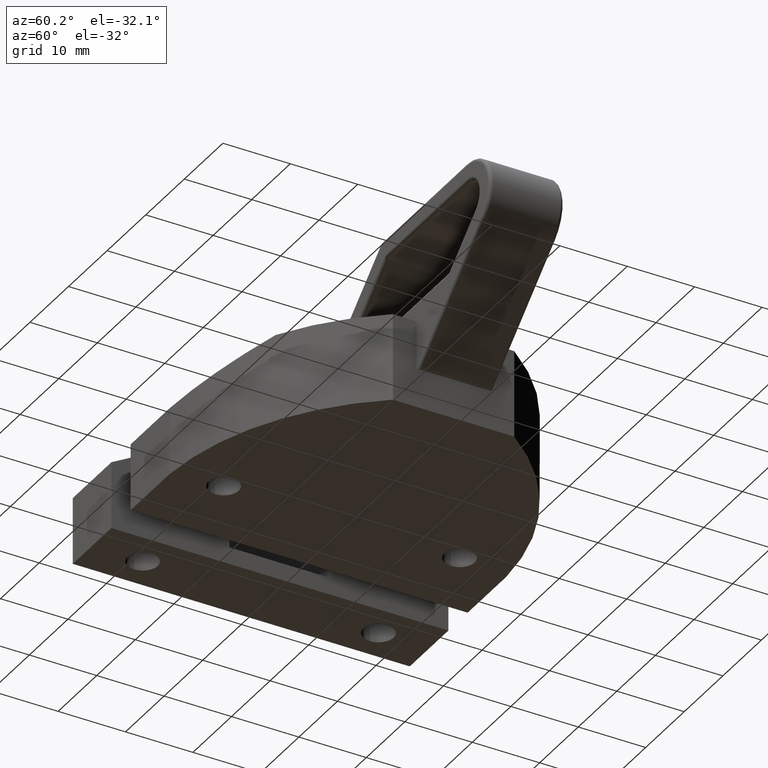
[diagram: clean part render]
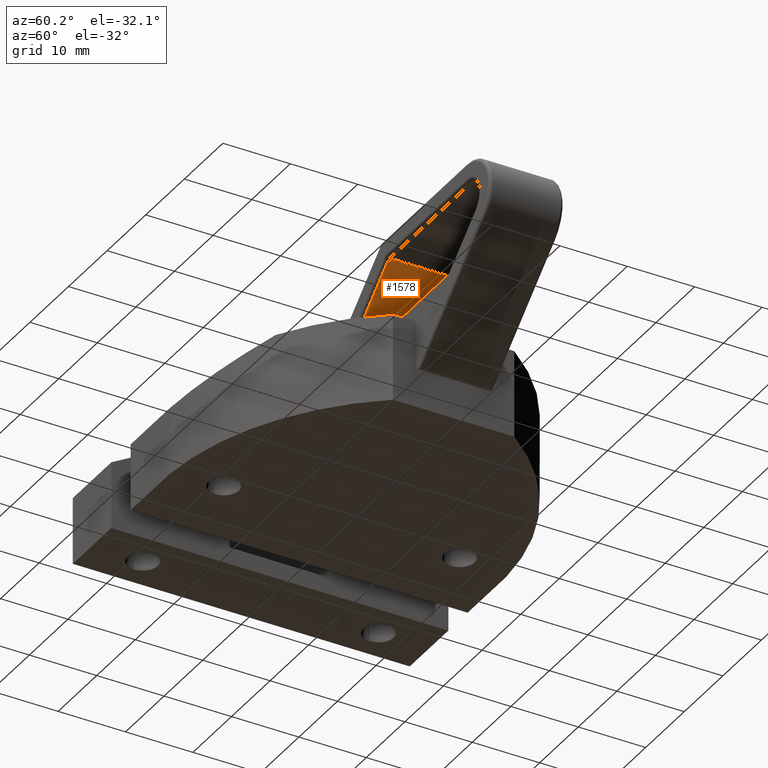
[diagram: same view with one face highlighted and labeled with its STEP entity id]
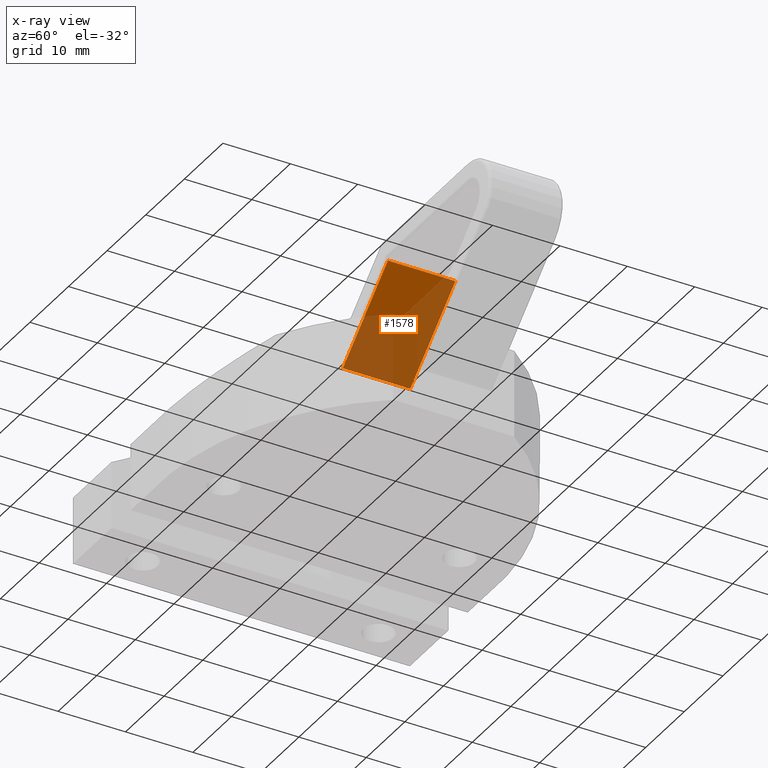
[diagram: x-ray of the same camera — body ghosted, the highlighted face saturated]
A machine part, auxiliary view. The second image highlights one B-rep face of the part: STEP entity #1578.
The next image is the same camera in x-ray: the body ghosted, the highlighted face saturated — about 70% of this face is hidden behind the body in this view.
In plain terms, the highlighted planar face has unit normal (0.6496, 0, -0.7603).
Its self-contained STEP definition (entity closure, byte-faithful):
#77=PLANE('',#1728);
#139=FACE_OUTER_BOUND('',#239,.T.);
#239=EDGE_LOOP('',(#1262,#1263,#1264,#1265));
#402=LINE('',#2662,#536);
#403=LINE('',#2664,#537);
#404=LINE('',#2666,#538);
#405=LINE('',#2667,#539);
#536=VECTOR('',#2105,1000.);
#537=VECTOR('',#2106,1000.);
#538=VECTOR('',#2107,1000.);
#539=VECTOR('',#2108,1000.);
#764=VERTEX_POINT('',#2660);
#765=VERTEX_POINT('',#2661);
#766=VERTEX_POINT('',#2663);
#767=VERTEX_POINT('',#2665);
#944=EDGE_CURVE('',#764,#765,#402,.T.);
#945=EDGE_CURVE('',#765,#766,#403,.T.);
#946=EDGE_CURVE('',#766,#767,#404,.T.);
#947=EDGE_CURVE('',#767,#764,#405,.T.);
#1262=ORIENTED_EDGE('',*,*,#944,.T.);
#1263=ORIENTED_EDGE('',*,*,#945,.T.);
#1264=ORIENTED_EDGE('',*,*,#946,.T.);
#1265=ORIENTED_EDGE('',*,*,#947,.T.);
#1578=ADVANCED_FACE('',(#139),#77,.T.);
#1728=AXIS2_PLACEMENT_3D('',#2659,#2103,#2104);
#2103=DIRECTION('center_axis',(0.649615291786725,0.,-0.760263094380391));
#2104=DIRECTION('ref_axis',(-0.760263094380391,0.,-0.649615291786725));
#2105=DIRECTION('',(0.760263094380391,0.,0.649615291786725));
#2106=DIRECTION('',(0.,-1.,0.));
#2107=DIRECTION('',(-0.760263094380391,0.,-0.649615291786725));
#2108=DIRECTION('',(0.,1.,0.));
#2659=CARTESIAN_POINT('Origin',(46.8810225216143,5.5,27.));
#2660=CARTESIAN_POINT('',(35.0374551026662,5.,16.8801315471902));
#2661=CARTESIAN_POINT('',(46.7407370911388,5.,26.8801315471902));
#2662=CARTESIAN_POINT('',(46.8810225216143,5.,27.));
#2663=CARTESIAN_POINT('',(46.7407370911388,-5.,26.8801315471902));
#2664=CARTESIAN_POINT('',(46.7407370911388,-5.5,26.8801315471902));
#2665=CARTESIAN_POINT('',(35.0374551026662,-5.,16.8801315471902));
#2666=CARTESIAN_POINT('',(46.8810225216143,-5.,27.));
#2667=CARTESIAN_POINT('',(35.0374551026662,5.5,16.8801315471902));